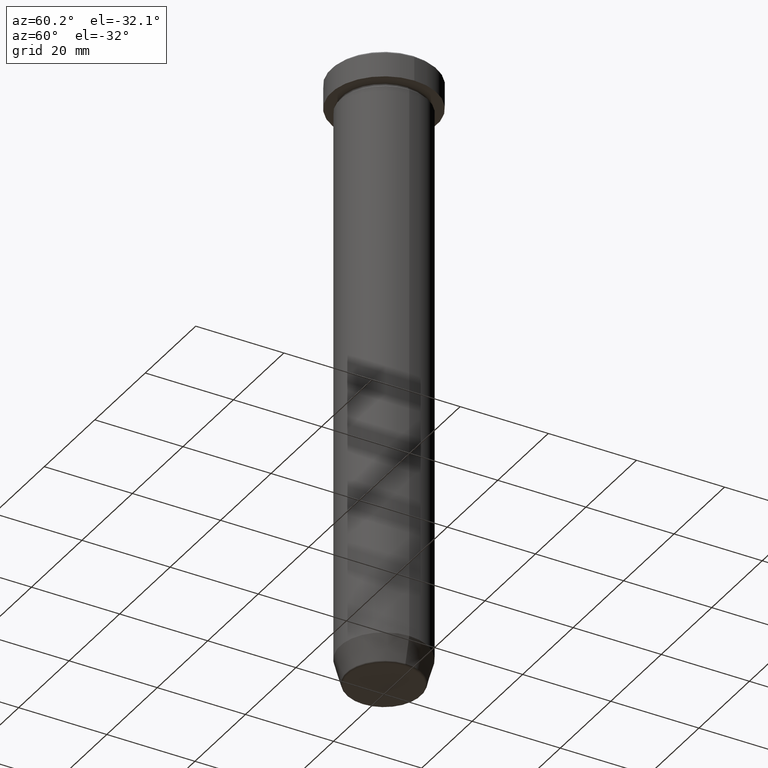
[diagram: clean part render]
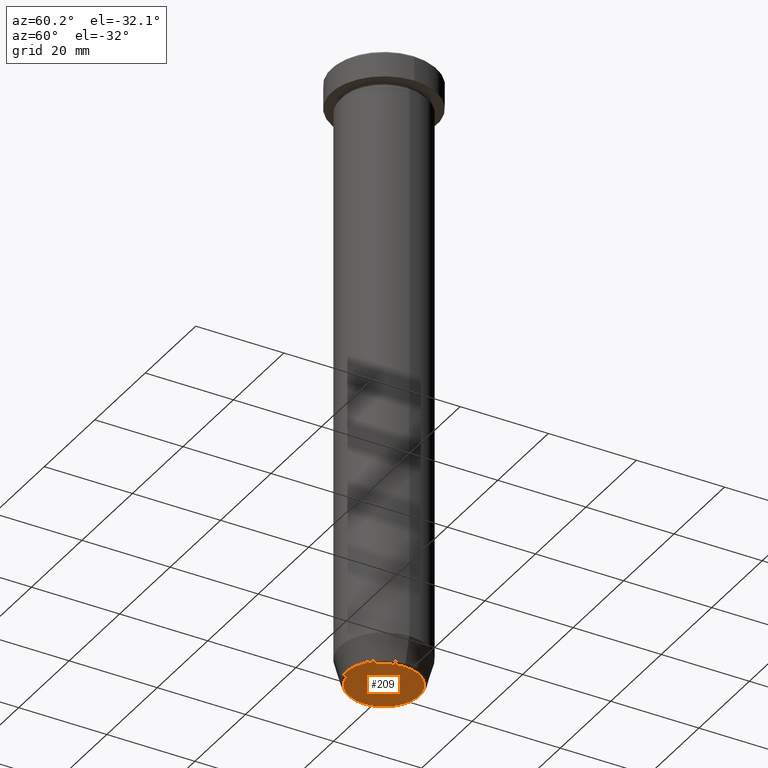
[diagram: same view with one face highlighted and labeled with its STEP entity id]
A machine part, auxiliary view. The second image highlights one B-rep face of the part: STEP entity #209.
In plain terms, the highlighted planar face has unit normal (0, -0, 1).
Its self-contained STEP definition (entity closure, byte-faithful):
#29 = PLANE ( 'NONE',  #119 ) ;
#30 = CARTESIAN_POINT ( 'NONE',  ( 0.000000000000000000, 0.000000000000000000, -140.0000000000000000 ) ) ;
#34 = AXIS2_PLACEMENT_3D ( 'NONE', #30, #35, #156 ) ;
#35 = DIRECTION ( 'NONE',  ( 0.000000000000000000, 0.000000000000000000, -1.000000000000000000 ) ) ;
#36 = DIRECTION ( 'NONE',  ( 1.000000000000000000, 0.000000000000000000, 0.000000000000000000 ) ) ;
#48 = EDGE_LOOP ( 'NONE', ( #477, #412 ) ) ;
#82 = EDGE_CURVE ( 'NONE', #474, #391, #445, .T. ) ;
#119 = AXIS2_PLACEMENT_3D ( 'NONE', #583, #352, #36 ) ;
#156 = DIRECTION ( 'NONE',  ( 1.000000000000000000, 0.000000000000000000, 0.000000000000000000 ) ) ;
#209 = ADVANCED_FACE ( 'NONE', ( #395 ), #29, .F. ) ;
#227 = DIRECTION ( 'NONE',  ( 1.000000000000000000, 0.000000000000000000, 0.000000000000000000 ) ) ;
#352 = DIRECTION ( 'NONE',  ( 0.000000000000000000, -0.000000000000000000, 1.000000000000000000 ) ) ;
#361 = DIRECTION ( 'NONE',  ( 0.000000000000000000, 0.000000000000000000, -1.000000000000000000 ) ) ;
#373 = CARTESIAN_POINT ( 'NONE',  ( -8.008641351423783306, 1.010348648938493172E-15, -140.0000000000000000 ) ) ;
#391 = VERTEX_POINT ( 'NONE', #441 ) ;
#395 = FACE_OUTER_BOUND ( 'NONE', #48, .T. ) ;
#412 = ORIENTED_EDGE ( 'NONE', *, *, #82, .T. ) ;
#420 = AXIS2_PLACEMENT_3D ( 'NONE', #454, #361, #227 ) ;
#441 = CARTESIAN_POINT ( 'NONE',  ( 8.008641351423783306, 0.000000000000000000, -140.0000000000000000 ) ) ;
#445 = CIRCLE ( 'NONE', #34, 8.008641351423783306 ) ;
#454 = CARTESIAN_POINT ( 'NONE',  ( 0.000000000000000000, 0.000000000000000000, -140.0000000000000000 ) ) ;
#474 = VERTEX_POINT ( 'NONE', #373 ) ;
#477 = ORIENTED_EDGE ( 'NONE', *, *, #596, .T. ) ;
#482 = CIRCLE ( 'NONE', #420, 8.008641351423783306 ) ;
#583 = CARTESIAN_POINT ( 'NONE',  ( 0.000000000000000000, 1.102182119232618069E-14, -140.0000000000000000 ) ) ;
#596 = EDGE_CURVE ( 'NONE', #391, #474, #482, .T. ) ;